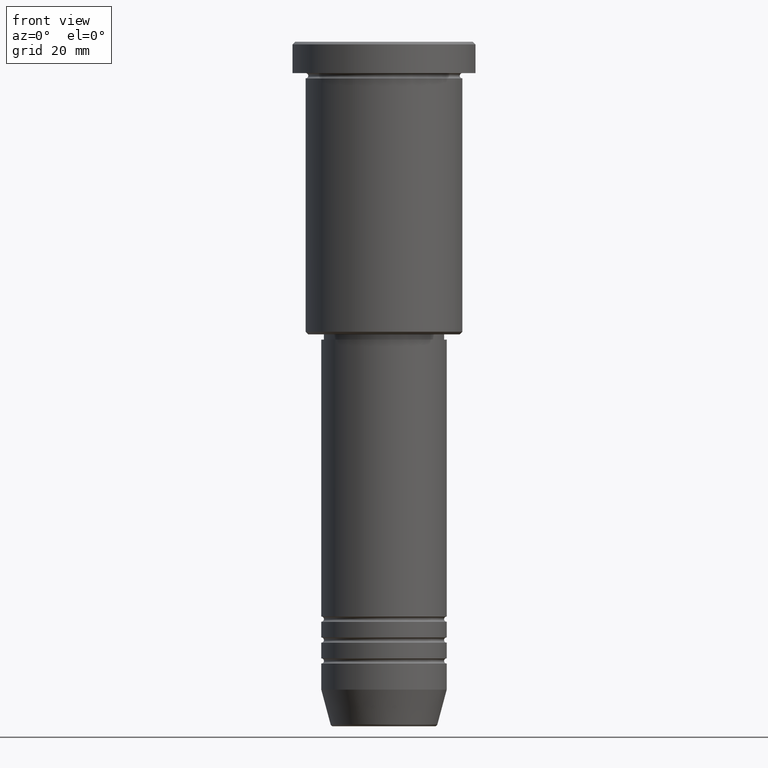
[diagram: clean part render]
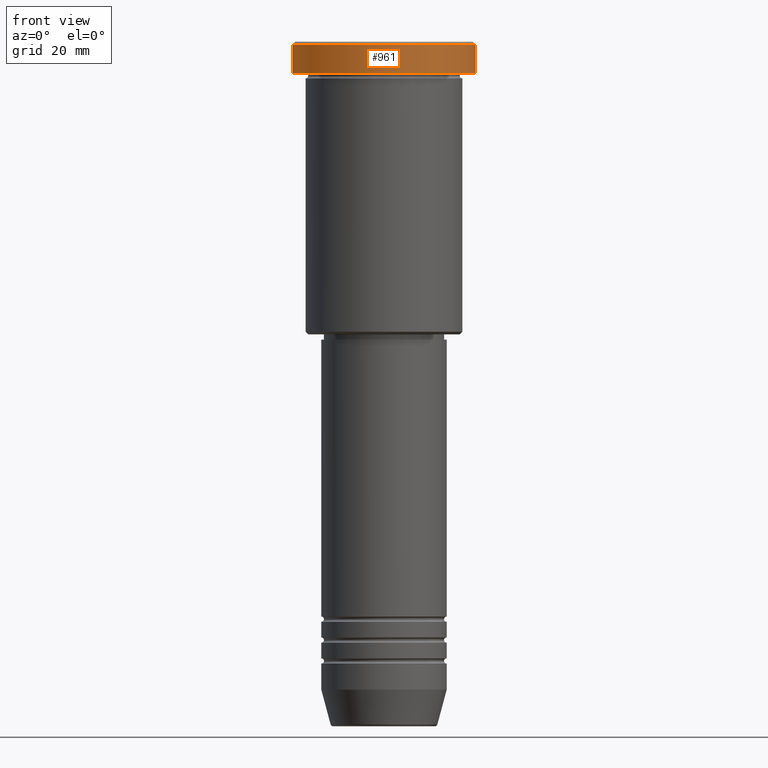
[diagram: same view with one face highlighted and labeled with its STEP entity id]
A machine part, front view. The second image highlights one B-rep face of the part: STEP entity #961.
In plain terms, the highlighted cylindrical surface (partial cylindrical patch) has radius 17.5 mm, axis along (-0, -0, 1).
Its self-contained STEP definition (entity closure, byte-faithful):
#24 = DIRECTION ( 'NONE',  ( -0.000000000000000000, -0.000000000000000000, 1.000000000000000000 ) ) ;
#83 = VERTEX_POINT ( 'NONE', #197 ) ;
#90 = VERTEX_POINT ( 'NONE', #644 ) ;
#109 = CYLINDRICAL_SURFACE ( 'NONE', #653, 17.50000000000000000 ) ;
#133 = DIRECTION ( 'NONE',  ( -0.000000000000000000, -0.000000000000000000, 1.000000000000000000 ) ) ;
#184 = VERTEX_POINT ( 'NONE', #600 ) ;
#197 = CARTESIAN_POINT ( 'NONE',  ( -17.50000000000000000, 2.143131898507868248E-15, -5.999999999999995559 ) ) ;
#207 = EDGE_LOOP ( 'NONE', ( #1182, #410, #415, #1041 ) ) ;
#208 = CARTESIAN_POINT ( 'NONE',  ( -17.50000000000000000, 2.143131898507868248E-15, -0.5000000000000003331 ) ) ;
#219 = EDGE_CURVE ( 'NONE', #83, #986, #1060, .T. ) ;
#362 = DIRECTION ( 'NONE',  ( 1.000000000000000000, 0.000000000000000000, 0.000000000000000000 ) ) ;
#366 = AXIS2_PLACEMENT_3D ( 'NONE', #484, #847, #572 ) ;
#367 = LINE ( 'NONE', #1005, #592 ) ;
#391 = EDGE_CURVE ( 'NONE', #90, #986, #666, .T. ) ;
#410 = ORIENTED_EDGE ( 'NONE', *, *, #469, .T. ) ;
#415 = ORIENTED_EDGE ( 'NONE', *, *, #747, .T. ) ;
#469 = EDGE_CURVE ( 'NONE', #83, #184, #857, .T. ) ;
#472 = CARTESIAN_POINT ( 'NONE',  ( 0.000000000000000000, 0.000000000000000000, 0.000000000000000000 ) ) ;
#484 = CARTESIAN_POINT ( 'NONE',  ( 0.000000000000000000, 0.000000000000000000, -5.999999999999995559 ) ) ;
#492 = FACE_OUTER_BOUND ( 'NONE', #207, .T. ) ;
#572 = DIRECTION ( 'NONE',  ( 1.000000000000000000, 0.000000000000000000, 0.000000000000000000 ) ) ;
#591 = AXIS2_PLACEMENT_3D ( 'NONE', #890, #985, #362 ) ;
#592 = VECTOR ( 'NONE', #1171, 1000.000000000000000 ) ;
#593 = CARTESIAN_POINT ( 'NONE',  ( -17.50000000000000000, 2.143131898507868248E-15, 0.000000000000000000 ) ) ;
#600 = CARTESIAN_POINT ( 'NONE',  ( 17.50000000000000000, 0.000000000000000000, -5.999999999999995559 ) ) ;
#644 = CARTESIAN_POINT ( 'NONE',  ( 17.50000000000000000, 0.000000000000000000, -0.5000000000000003331 ) ) ;
#653 = AXIS2_PLACEMENT_3D ( 'NONE', #472, #24, #754 ) ;
#666 = CIRCLE ( 'NONE', #591, 17.50000000000000000 ) ;
#747 = EDGE_CURVE ( 'NONE', #184, #90, #367, .T. ) ;
#754 = DIRECTION ( 'NONE',  ( 1.000000000000000000, 0.000000000000000000, 0.000000000000000000 ) ) ;
#817 = VECTOR ( 'NONE', #133, 1000.000000000000000 ) ;
#847 = DIRECTION ( 'NONE',  ( -0.000000000000000000, -0.000000000000000000, 1.000000000000000000 ) ) ;
#857 = CIRCLE ( 'NONE', #366, 17.50000000000000000 ) ;
#890 = CARTESIAN_POINT ( 'NONE',  ( 0.000000000000000000, 0.000000000000000000, -0.5000000000000003331 ) ) ;
#961 = ADVANCED_FACE ( 'NONE', ( #492 ), #109, .T. ) ;
#985 = DIRECTION ( 'NONE',  ( 0.000000000000000000, 0.000000000000000000, -1.000000000000000000 ) ) ;
#986 = VERTEX_POINT ( 'NONE', #208 ) ;
#1005 = CARTESIAN_POINT ( 'NONE',  ( 17.50000000000000000, 0.000000000000000000, 0.000000000000000000 ) ) ;
#1041 = ORIENTED_EDGE ( 'NONE', *, *, #391, .T. ) ;
#1060 = LINE ( 'NONE', #593, #817 ) ;
#1171 = DIRECTION ( 'NONE',  ( -0.000000000000000000, -0.000000000000000000, 1.000000000000000000 ) ) ;
#1182 = ORIENTED_EDGE ( 'NONE', *, *, #219, .F. ) ;